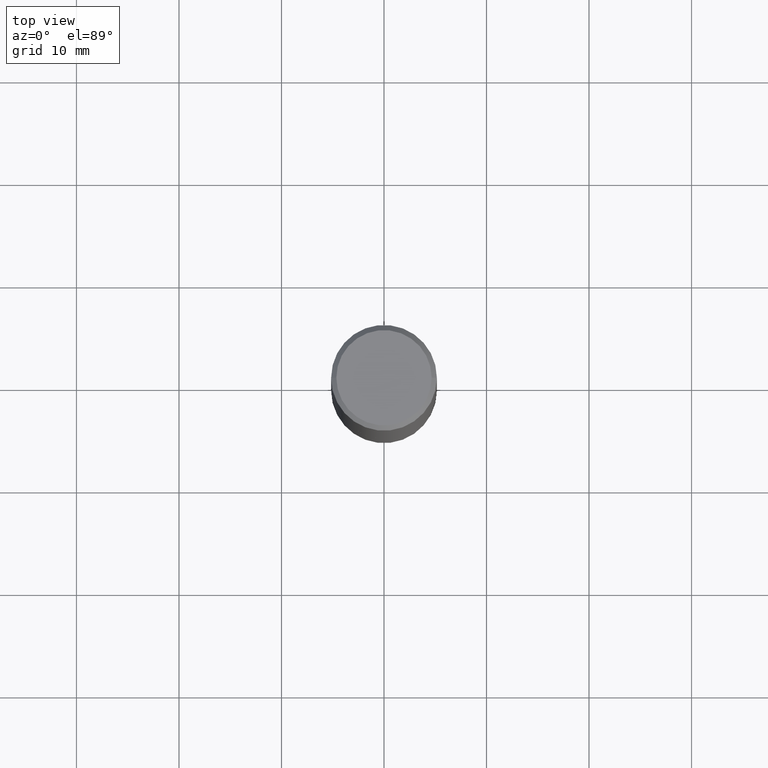
[diagram: clean part render]
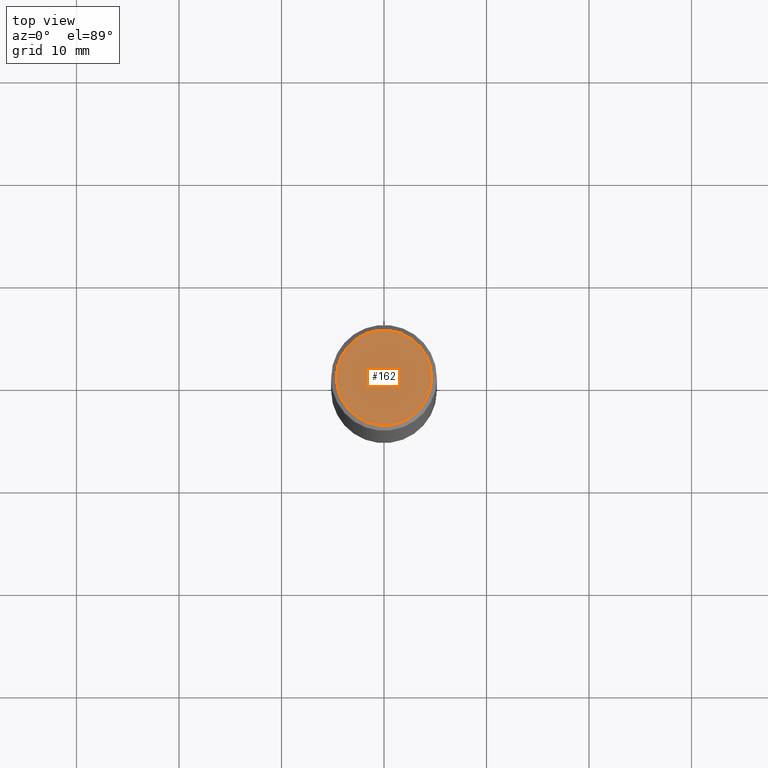
[diagram: same view with one face highlighted and labeled with its STEP entity id]
A machine part, top view. The second image highlights one B-rep face of the part: STEP entity #162.
In plain terms, the highlighted planar face has unit normal (0, -0, -1).
Its self-contained STEP definition (entity closure, byte-faithful):
#34 = CARTESIAN_POINT ( 'NONE',  ( 0.1830999999999998462, -1.359676976758113188E-15, 9.224940175330600101E-30 ) ) ;
#56 = ORIENTED_EDGE ( 'NONE', *, *, #322, .T. ) ;
#59 = DIRECTION ( 'NONE',  ( -2.445468806185136597E-29, 3.491481338843145583E-15, 1.000000000000000000 ) ) ;
#64 = CARTESIAN_POINT ( 'NONE',  ( -0.1830999999999998462, 1.313495279672785236E-15, -9.063697641761070783E-30 ) ) ;
#75 = DIRECTION ( 'NONE',  ( -2.445468806185136597E-29, 3.491481338843145583E-15, 1.000000000000000000 ) ) ;
#76 = CIRCLE ( 'NONE', #324, 0.1830999999999998462 ) ;
#90 = FACE_OUTER_BOUND ( 'NONE', #104, .T. ) ;
#104 = EDGE_LOOP ( 'NONE', ( #338, #56 ) ) ;
#111 = CIRCLE ( 'NONE', #246, 0.1830999999999998462 ) ;
#119 = CARTESIAN_POINT ( 'NONE',  ( 0.000000000000000000, 0.000000000000000000, 0.000000000000000000 ) ) ;
#124 = PLANE ( 'NONE',  #368 ) ;
#157 = DIRECTION ( 'NONE',  ( 2.438088387897960049E-29, -3.491481338843145188E-15, -1.000000000000000000 ) ) ;
#162 = ADVANCED_FACE ( 'NONE', ( #90 ), #124, .F. ) ;
#185 = DIRECTION ( 'NONE',  ( 1.000000000000000000, -6.982962677686266711E-15, 4.876176775795935793E-29 ) ) ;
#206 = VERTEX_POINT ( 'NONE', #34 ) ;
#246 = AXIS2_PLACEMENT_3D ( 'NONE', #330, #75, #185 ) ;
#295 = CARTESIAN_POINT ( 'NONE',  ( 1.278580466284354179E-15, 0.1830999999999998462, -6.392902331421793574E-16 ) ) ;
#298 = VERTEX_POINT ( 'NONE', #64 ) ;
#319 = DIRECTION ( 'NONE',  ( -1.000000000000000000, 6.982962677686265922E-15, -4.876176775795935793E-29 ) ) ;
#322 = EDGE_CURVE ( 'NONE', #206, #298, #76, .T. ) ;
#324 = AXIS2_PLACEMENT_3D ( 'NONE', #119, #59, #363 ) ;
#330 = CARTESIAN_POINT ( 'NONE',  ( 0.000000000000000000, 0.000000000000000000, 0.000000000000000000 ) ) ;
#338 = ORIENTED_EDGE ( 'NONE', *, *, #381, .T. ) ;
#363 = DIRECTION ( 'NONE',  ( 1.000000000000000000, -6.982962677686266711E-15, 4.876176775795935793E-29 ) ) ;
#368 = AXIS2_PLACEMENT_3D ( 'NONE', #295, #157, #319 ) ;
#381 = EDGE_CURVE ( 'NONE', #298, #206, #111, .T. ) ;